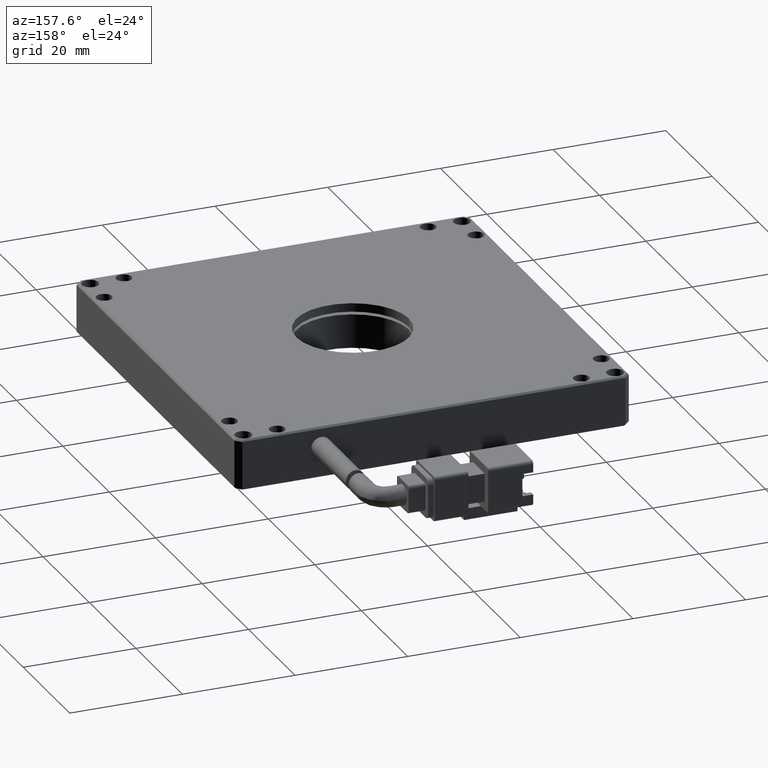
[diagram: clean part render]
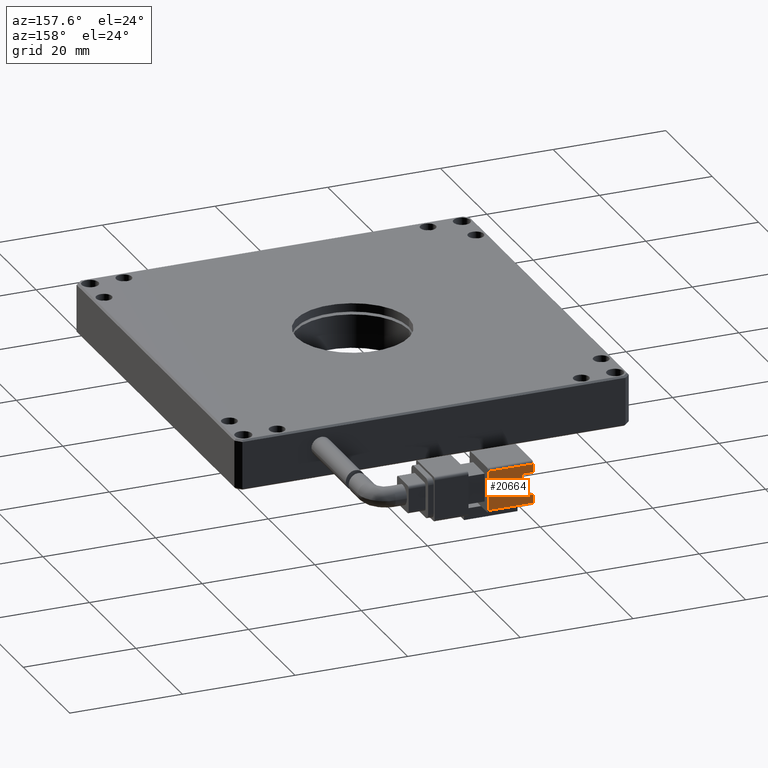
[diagram: same view with one face highlighted and labeled with its STEP entity id]
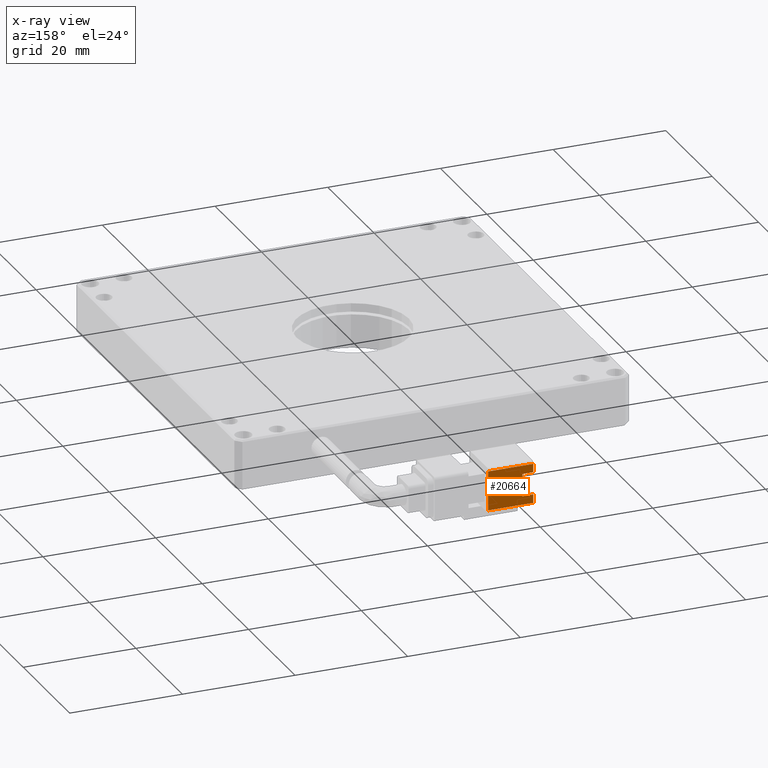
[diagram: x-ray of the same camera — body ghosted, the highlighted face saturated]
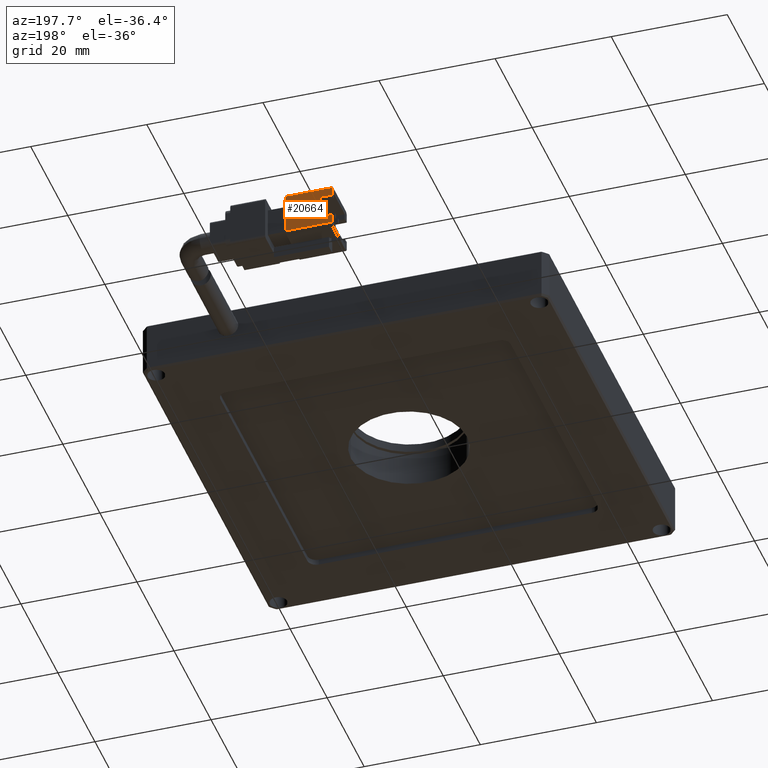
[diagram: same view with one face highlighted and labeled with its STEP entity id]
A machine part, auxiliary view. The second image highlights one B-rep face of the part: STEP entity #20664.
The next image is the same camera in x-ray: the body ghosted, the highlighted face saturated — about 0% of this face is hidden behind the body in this view.
A second angle (auxiliary view) of the same face is appended — the face is thin or edge-on in the first view.
In plain terms, the highlighted planar face has unit normal (0, -1, 0).
Its self-contained STEP definition (entity closure, byte-faithful):
#18 = ORIENTED_EDGE ( 'NONE', *, *, #12465, .F. ) ;
#181 = DIRECTION ( 'NONE',  ( 0.0000000000000000000, 0.0000000000000000000, -1.000000000000000000 ) ) ;
#789 = LINE ( 'NONE', #12410, #8287 ) ;
#1000 = LINE ( 'NONE', #7988, #9739 ) ;
#1044 = VERTEX_POINT ( 'NONE', #11800 ) ;
#1782 = LINE ( 'NONE', #8560, #2047 ) ;
#2028 = CARTESIAN_POINT ( 'NONE',  ( -17.04767712565125100, 99.53591370558378100, 4.499999999999998200 ) ) ;
#2047 = VECTOR ( 'NONE', #18280, 1000.000000000000000 ) ;
#2651 = DIRECTION ( 'NONE',  ( 1.000000000000000000, -0.0000000000000000000, -0.0000000000000000000 ) ) ;
#4876 = ORIENTED_EDGE ( 'NONE', *, *, #11384, .T. ) ;
#5056 = CARTESIAN_POINT ( 'NONE',  ( -17.04767712565125100, 99.53591370558378100, 0.4999999999999973900 ) ) ;
#5952 = VERTEX_POINT ( 'NONE', #9215 ) ;
#6144 = ORIENTED_EDGE ( 'NONE', *, *, #19831, .F. ) ;
#6283 = DIRECTION ( 'NONE',  ( -1.000000000000000000, 0.0000000000000000000, 0.0000000000000000000 ) ) ;
#6891 = VERTEX_POINT ( 'NONE', #12710 ) ;
#7025 = FACE_OUTER_BOUND ( 'NONE', #7437, .T. ) ;
#7437 = EDGE_LOOP ( 'NONE', ( #18478, #18, #17952, #4876, #17393, #20983, #6144, #12830 ) ) ;
#7988 = CARTESIAN_POINT ( 'NONE',  ( -18.96630710659900400, 99.53591370558378100, 0.4999999999999973900 ) ) ;
#8143 = DIRECTION ( 'NONE',  ( -1.000000000000000000, 0.0000000000000000000, 0.0000000000000000000 ) ) ;
#8237 = CARTESIAN_POINT ( 'NONE',  ( -18.96630710659900400, 99.53591370558378100, -1.000000000000000400 ) ) ;
#8272 = VERTEX_POINT ( 'NONE', #2028 ) ;
#8287 = VECTOR ( 'NONE', #2651, 1000.000000000000000 ) ;
#8560 = CARTESIAN_POINT ( 'NONE',  ( -18.96630710659900400, 99.53591370558378100, -1.000000000000000400 ) ) ;
#8760 = VECTOR ( 'NONE', #14685, 1000.000000000000000 ) ;
#9215 = CARTESIAN_POINT ( 'NONE',  ( -18.96630710659900400, 99.53591370558378100, 0.4999999999999978400 ) ) ;
#9546 = LINE ( 'NONE', #11891, #19853 ) ;
#9739 = VECTOR ( 'NONE', #6283, 1000.000000000000000 ) ;
#10946 = LINE ( 'NONE', #19756, #12506 ) ;
#11108 = CARTESIAN_POINT ( 'NONE',  ( -18.96630710659900400, 99.53591370558378100, -1.000000000000000400 ) ) ;
#11152 = VECTOR ( 'NONE', #21200, 1000.000000000000000 ) ;
#11384 = EDGE_CURVE ( 'NONE', #1044, #6891, #18791, .T. ) ;
#11800 = CARTESIAN_POINT ( 'NONE',  ( -18.96630710659900400, 99.53591370558378100, 4.499999999999998200 ) ) ;
#11873 = EDGE_CURVE ( 'NONE', #5952, #20022, #1782, .T. ) ;
#11891 = CARTESIAN_POINT ( 'NONE',  ( -10.96630710659900000, 99.53591370558378100, -1.000000000000000400 ) ) ;
#12142 = DIRECTION ( 'NONE',  ( 1.000000000000000000, -0.0000000000000000000, -0.0000000000000000000 ) ) ;
#12289 = VECTOR ( 'NONE', #12142, 1000.000000000000000 ) ;
#12410 = CARTESIAN_POINT ( 'NONE',  ( -18.96630710659900400, 99.53591370558378100, 4.499999999999999100 ) ) ;
#12465 = EDGE_CURVE ( 'NONE', #8272, #13028, #10946, .T. ) ;
#12506 = VECTOR ( 'NONE', #181, 1000.000000000000000 ) ;
#12710 = CARTESIAN_POINT ( 'NONE',  ( -18.96630710659900400, 99.53591370558378100, 6.000000000000000000 ) ) ;
#12830 = ORIENTED_EDGE ( 'NONE', *, *, #11873, .F. ) ;
#12894 = VERTEX_POINT ( 'NONE', #16086 ) ;
#13028 = VERTEX_POINT ( 'NONE', #5056 ) ;
#13704 = EDGE_CURVE ( 'NONE', #12894, #15758, #9546, .T. ) ;
#14685 = DIRECTION ( 'NONE',  ( -0.0000000000000000000, -0.0000000000000000000, 1.000000000000000000 ) ) ;
#15550 = LINE ( 'NONE', #21067, #11152 ) ;
#15601 = CARTESIAN_POINT ( 'NONE',  ( -18.96630710659900400, 99.53591370558378100, -1.000000000000000400 ) ) ;
#15637 = LINE ( 'NONE', #15601, #12289 ) ;
#15758 = VERTEX_POINT ( 'NONE', #17167 ) ;
#15838 = EDGE_CURVE ( 'NONE', #15758, #6891, #15550, .T. ) ;
#15942 = AXIS2_PLACEMENT_3D ( 'NONE', #19575, #16383, #8143 ) ;
#16086 = CARTESIAN_POINT ( 'NONE',  ( -10.96630710659900000, 99.53591370558378100, -1.000000000000000400 ) ) ;
#16383 = DIRECTION ( 'NONE',  ( 0.0000000000000000000, -1.000000000000000000, 0.0000000000000000000 ) ) ;
#16909 = EDGE_CURVE ( 'NONE', #13028, #5952, #1000, .T. ) ;
#17167 = CARTESIAN_POINT ( 'NONE',  ( -10.96630710659900000, 99.53591370558378100, 6.000000000000000000 ) ) ;
#17393 = ORIENTED_EDGE ( 'NONE', *, *, #15838, .F. ) ;
#17906 = PLANE ( 'NONE',  #15942 ) ;
#17952 = ORIENTED_EDGE ( 'NONE', *, *, #18929, .F. ) ;
#18280 = DIRECTION ( 'NONE',  ( 0.0000000000000000000, 0.0000000000000000000, -1.000000000000000000 ) ) ;
#18478 = ORIENTED_EDGE ( 'NONE', *, *, #16909, .F. ) ;
#18791 = LINE ( 'NONE', #8237, #8760 ) ;
#18929 = EDGE_CURVE ( 'NONE', #1044, #8272, #789, .T. ) ;
#19575 = CARTESIAN_POINT ( 'NONE',  ( -18.96630710659900400, 99.53591370558378100, -1.000000000000000400 ) ) ;
#19756 = CARTESIAN_POINT ( 'NONE',  ( -17.04767712565125100, 99.53591370558378100, -1.000000000000000400 ) ) ;
#19831 = EDGE_CURVE ( 'NONE', #20022, #12894, #15637, .T. ) ;
#19853 = VECTOR ( 'NONE', #20294, 1000.000000000000000 ) ;
#20022 = VERTEX_POINT ( 'NONE', #11108 ) ;
#20294 = DIRECTION ( 'NONE',  ( -0.0000000000000000000, -0.0000000000000000000, 1.000000000000000000 ) ) ;
#20664 = ADVANCED_FACE ( 'NONE', ( #7025 ), #17906, .F. ) ;
#20983 = ORIENTED_EDGE ( 'NONE', *, *, #13704, .F. ) ;
#21067 = CARTESIAN_POINT ( 'NONE',  ( -18.96630710659900400, 99.53591370558378100, 6.000000000000000000 ) ) ;
#21200 = DIRECTION ( 'NONE',  ( -1.000000000000000000, -0.0000000000000000000, -0.0000000000000000000 ) ) ;